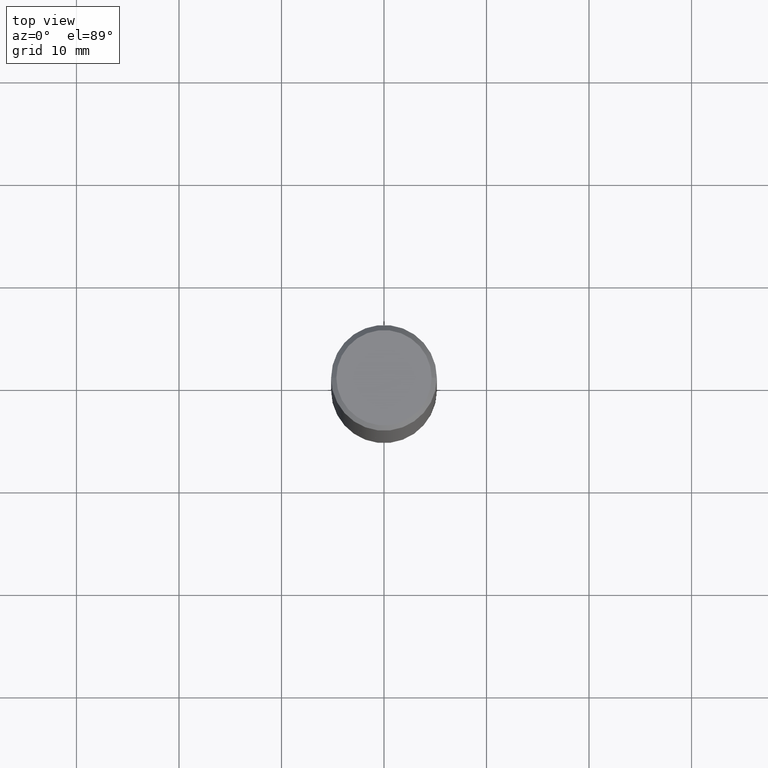
[diagram: clean part render]
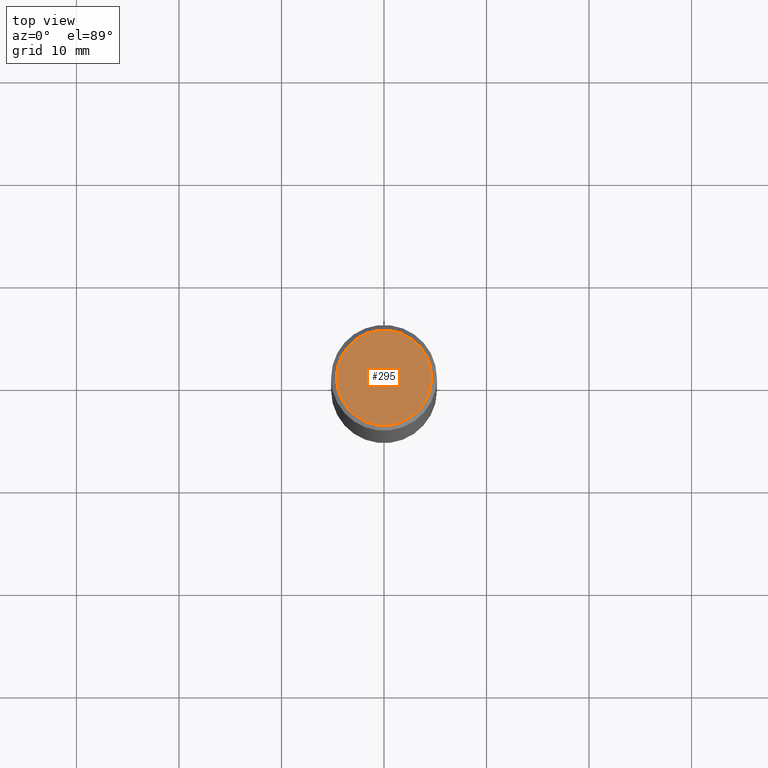
[diagram: same view with one face highlighted and labeled with its STEP entity id]
A machine part, top view. The second image highlights one B-rep face of the part: STEP entity #295.
In plain terms, the highlighted planar face has unit normal (0, -0, -1).
Its self-contained STEP definition (entity closure, byte-faithful):
#22 = CARTESIAN_POINT ( 'NONE',  ( 1.278580466284354179E-15, 0.1830999999999998462, -6.392902331421793574E-16 ) ) ;
#31 = EDGE_CURVE ( 'NONE', #266, #205, #92, .T. ) ;
#53 = ORIENTED_EDGE ( 'NONE', *, *, #380, .T. ) ;
#70 = AXIS2_PLACEMENT_3D ( 'NONE', #22, #238, #114 ) ;
#92 = CIRCLE ( 'NONE', #320, 0.1830999999999998462 ) ;
#94 = DIRECTION ( 'NONE',  ( 1.000000000000000000, -6.982962677686266711E-15, 4.876176775795935793E-29 ) ) ;
#104 = AXIS2_PLACEMENT_3D ( 'NONE', #269, #123, #116 ) ;
#112 = ORIENTED_EDGE ( 'NONE', *, *, #31, .T. ) ;
#114 = DIRECTION ( 'NONE',  ( -1.000000000000000000, 6.982962677686265922E-15, -4.876176775795935793E-29 ) ) ;
#116 = DIRECTION ( 'NONE',  ( 1.000000000000000000, -6.982962677686266711E-15, 4.876176775795935793E-29 ) ) ;
#123 = DIRECTION ( 'NONE',  ( -2.445468806185136597E-29, 3.491481338843145583E-15, 1.000000000000000000 ) ) ;
#187 = CARTESIAN_POINT ( 'NONE',  ( 0.000000000000000000, 0.000000000000000000, 0.000000000000000000 ) ) ;
#205 = VERTEX_POINT ( 'NONE', #312 ) ;
#238 = DIRECTION ( 'NONE',  ( 2.438088387897960049E-29, -3.491481338843145188E-15, -1.000000000000000000 ) ) ;
#266 = VERTEX_POINT ( 'NONE', #321 ) ;
#269 = CARTESIAN_POINT ( 'NONE',  ( 0.000000000000000000, 0.000000000000000000, 0.000000000000000000 ) ) ;
#295 = ADVANCED_FACE ( 'NONE', ( #381 ), #326, .F. ) ;
#299 = DIRECTION ( 'NONE',  ( -2.445468806185136597E-29, 3.491481338843145583E-15, 1.000000000000000000 ) ) ;
#312 = CARTESIAN_POINT ( 'NONE',  ( -0.1830999999999998462, 1.313495279672785236E-15, -9.063697641761070783E-30 ) ) ;
#315 = CIRCLE ( 'NONE', #104, 0.1830999999999998462 ) ;
#320 = AXIS2_PLACEMENT_3D ( 'NONE', #187, #299, #94 ) ;
#321 = CARTESIAN_POINT ( 'NONE',  ( 0.1830999999999998462, -1.359676976758113188E-15, 9.224940175330600101E-30 ) ) ;
#322 = EDGE_LOOP ( 'NONE', ( #53, #112 ) ) ;
#326 = PLANE ( 'NONE',  #70 ) ;
#380 = EDGE_CURVE ( 'NONE', #205, #266, #315, .T. ) ;
#381 = FACE_OUTER_BOUND ( 'NONE', #322, .T. ) ;